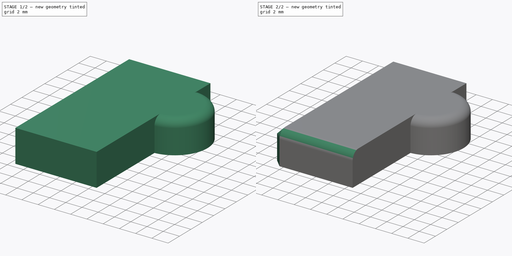
[diagram: build sequence overview — one tinted view per stage of 2, left to right]
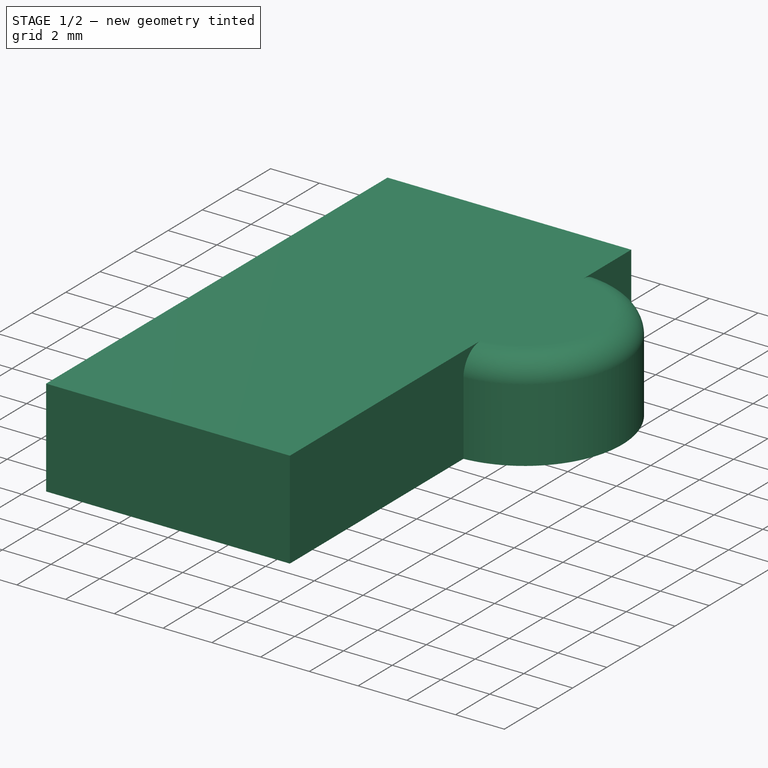
[diagram: stage 1 of 2 — iso view after this stage's code; geometry added in this stage tinted green]
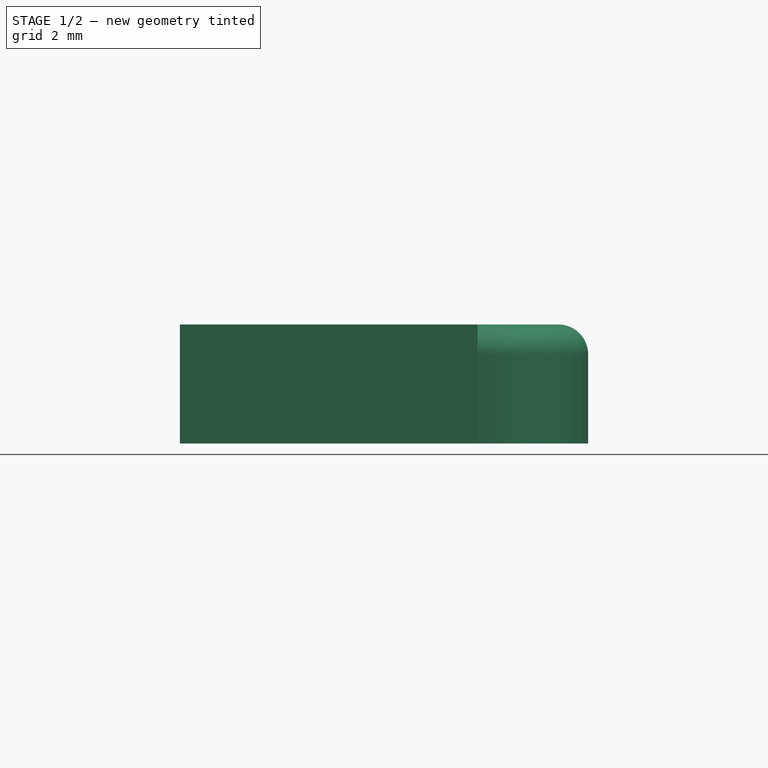
[diagram: stage 1 of 2 — front view after this stage's code; geometry added in this stage tinted green]
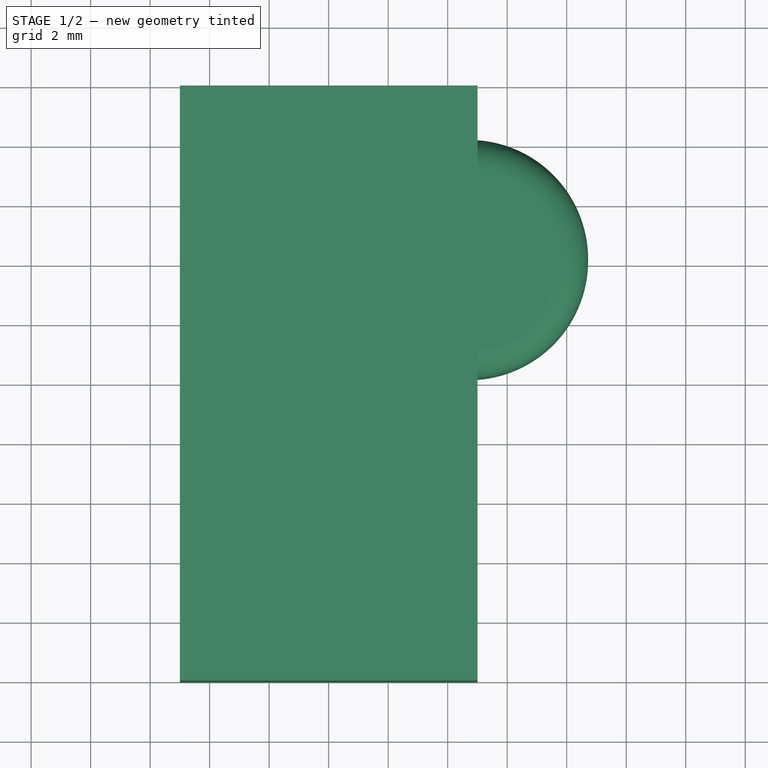
[diagram: stage 1 of 2 — top view after this stage's code; geometry added in this stage tinted green]
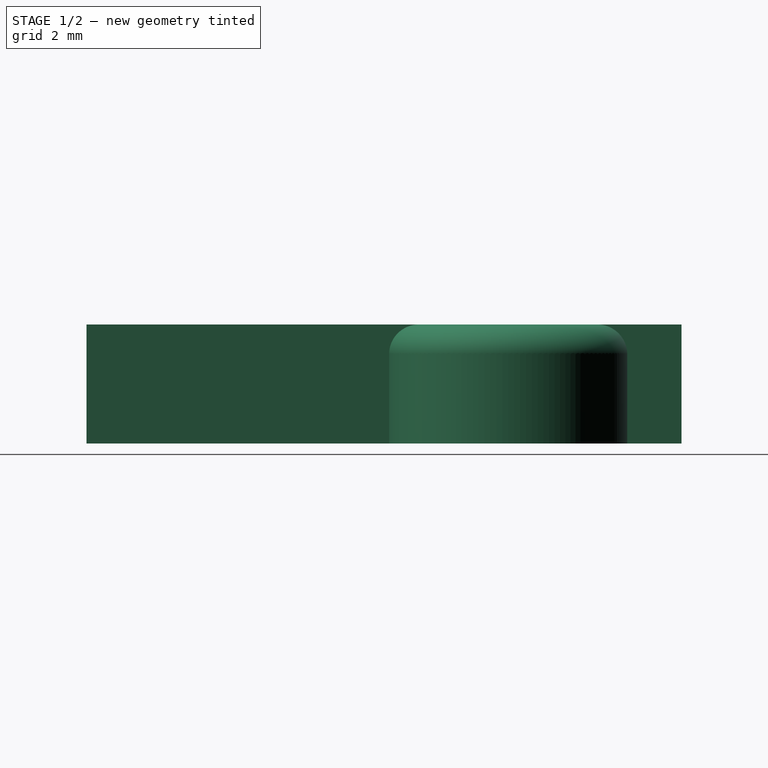
[diagram: stage 1 of 2 — right view after this stage's code; geometry added in this stage tinted green]
FCSTD DOCUMENT  (FreeCAD 0.20R25220 (Git))
Label: test_part
License: All rights reserved
LicenseURL: http://en.wikipedia.org/wiki/All_rights_reserved
objects: PartDesign::Fillet×2, Sketcher::SketchObject×1, PartDesign::Pad×1, PartDesign::Chamfer×1, PartDesign::Body×1
note: 10 computed .brp shape members not serialized (recipe doc carries the construction recipe); baked Part::Feature solids carry a one-line shape summary decoded from their .brp

FEATURE [Sketcher::SketchObject] Sketch
  FullyConstrained = false
  MapMode = 5
  Support = -> [XY_Plane]
  sketch-geometry (6):
    g0: LineSegment StartX=-5 StartY=10 StartZ=0 EndX=5 EndY=10 EndZ=0
    g1: LineSegment StartX=5 StartY=10 StartZ=0 EndX=5 EndY=8.17465 EndZ=0
    g2: LineSegment StartX=5 StartY=-10 StartZ=0 EndX=-5 EndY=-10 EndZ=0
    g3: LineSegment StartX=-5 StartY=-10 StartZ=0 EndX=-5 EndY=10 EndZ=0
    g4: ArcOfCircle CenterX=4.70663 CenterY=4.17253 CenterZ=0 NormalX=0 NormalY=0 NormalZ=1 AngleXU=0 Radius=4.01286 StartAngle=4.78556 EndAngle=7.78081
    g5: LineSegment StartX=5 StartY=0.170411 StartZ=0 EndX=5 EndY=-10 EndZ=0
  constraints (14):
    c: Coincident(g0,g1)
    c: Coincident(g5,g2)
    c: Coincident(g2,g3)
    c: Coincident(g3,g0)
    c: Horizontal(g0)
    c: Horizontal(g2)
    c: Vertical(g1)
    c: Vertical(g3)
    c: DistanceX(g2,g2) = 10
    c: DistanceY(g5,g1) = 20
    c: Distance(g-1,g1) = 5
    c: Distance(g-1,g0) = 10
    c: Coincident(g1,g4)
    c: Coincident(g5,g4)
FEATURE [PartDesign::Pad] Pad
  Direction = (0,0,1)
  Length = 4
  Length2 = 100
  Profile = -> Sketch
  Type = 0
FEATURE [PartDesign::Fillet] Fillet
  Base = -> Pad [Edge18]
  BaseFeature = -> Pad
  Radius = 1
  SupportTransform = false
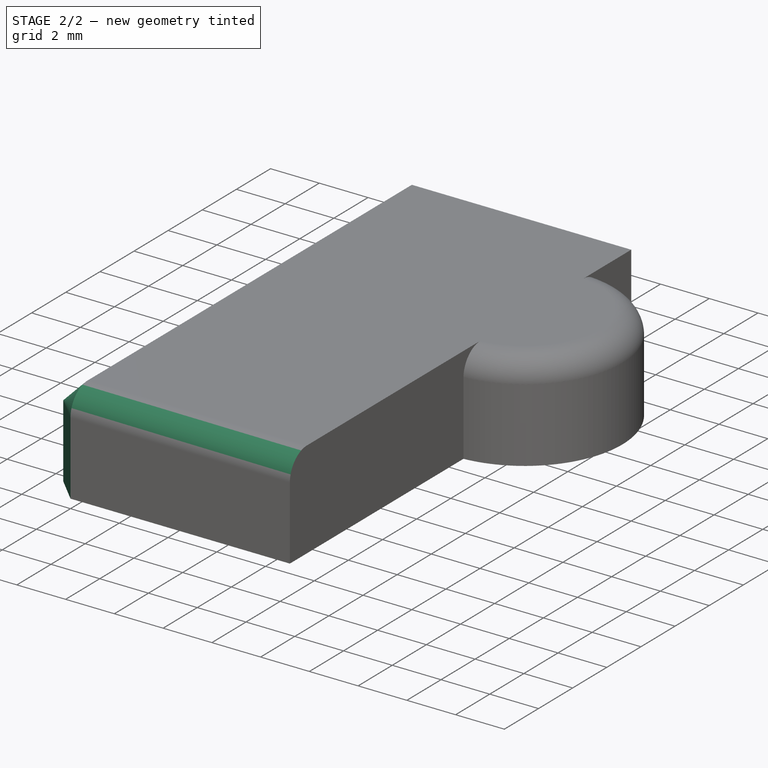
[diagram: stage 2 of 2 — iso view after this stage's code; geometry added in this stage tinted green]
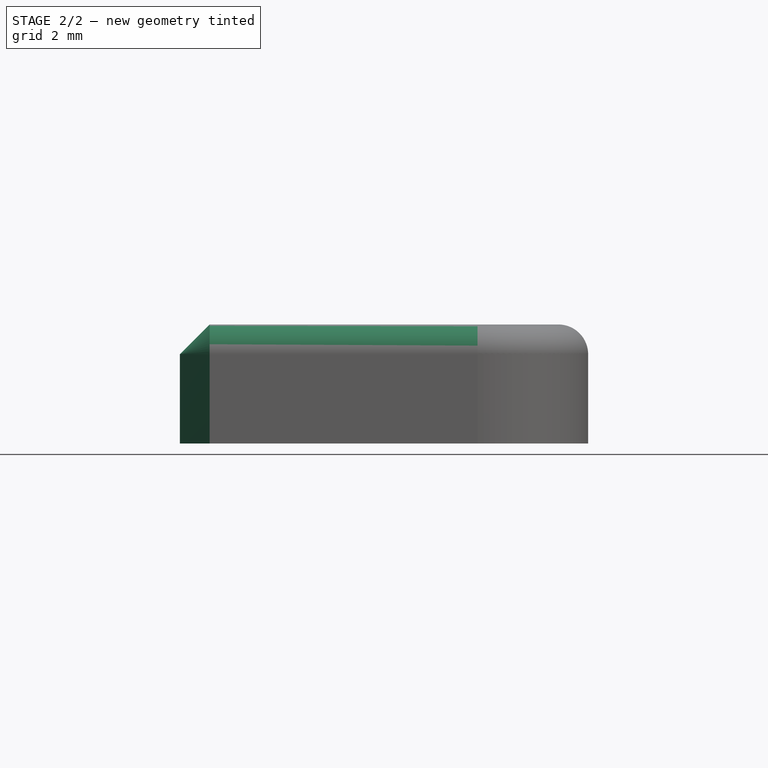
[diagram: stage 2 of 2 — front view after this stage's code; geometry added in this stage tinted green]
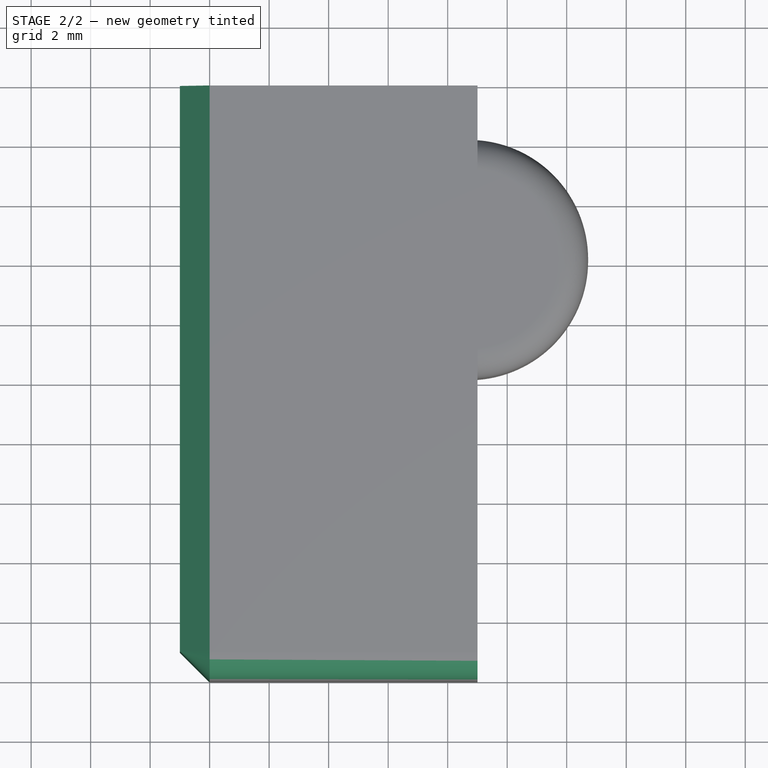
[diagram: stage 2 of 2 — top view after this stage's code; geometry added in this stage tinted green]
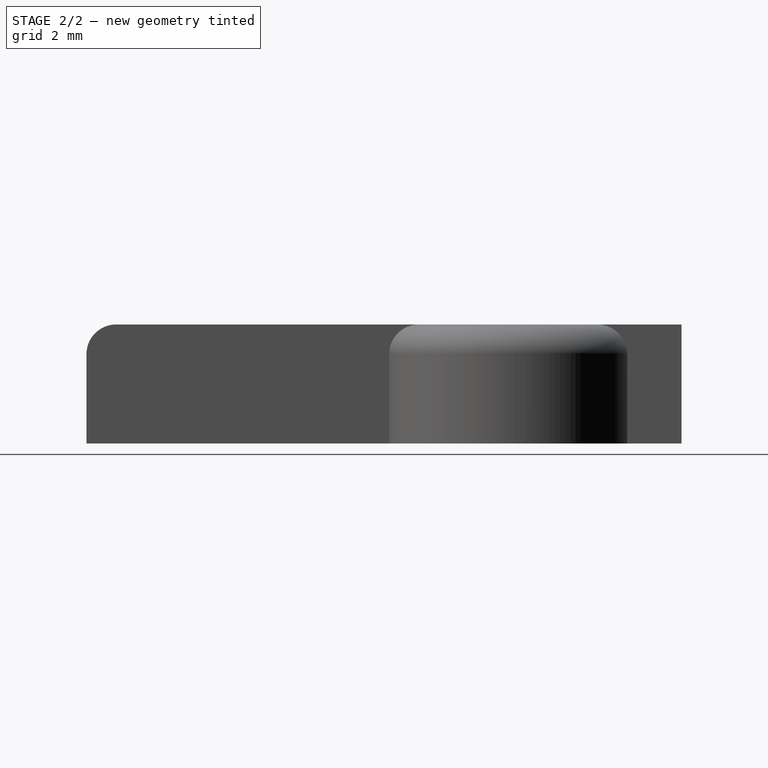
[diagram: stage 2 of 2 — right view after this stage's code; geometry added in this stage tinted green]
FEATURE [PartDesign::Fillet] Fillet001
  Base = -> Fillet [Edge16]
  BaseFeature = -> Fillet
  Radius = 1
  SupportTransform = false
FEATURE [PartDesign::Chamfer] Chamfer
  Angle = 45
  Base = -> Fillet001 [Edge17]
  BaseFeature = -> Fillet001
  ChamferType = 0
  FlipDirection = false
  Size = 1
  Size2 = 1
  SupportTransform = false
FEATURE [PartDesign::Body] Body
  Group = -> [Sketch,Pad,Fillet,Fillet001,Chamfer]
  Origin = -> Origin
  Tip = -> Chamfer
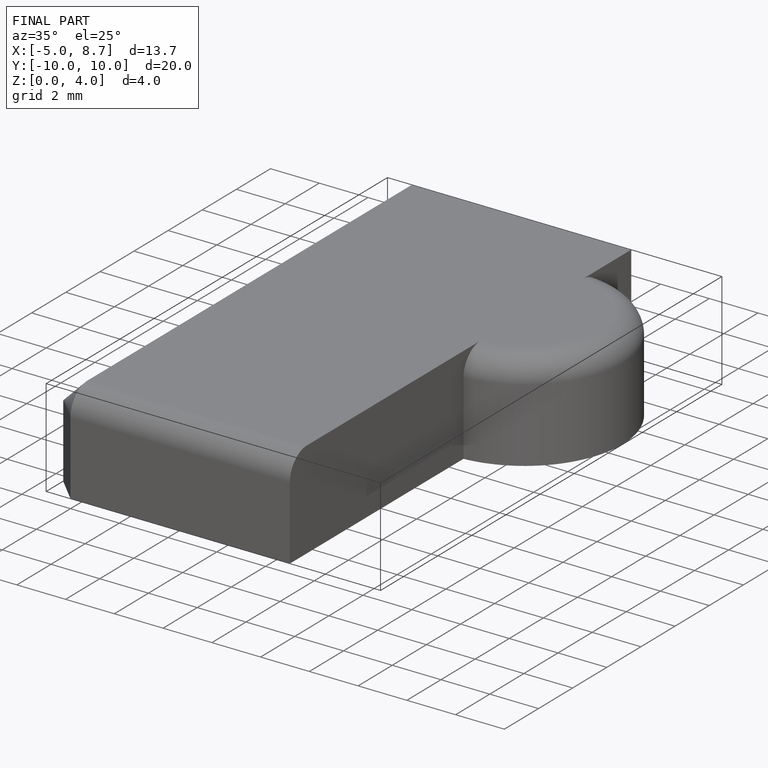
[diagram: finished part — iso view with bounding-box wireframe]
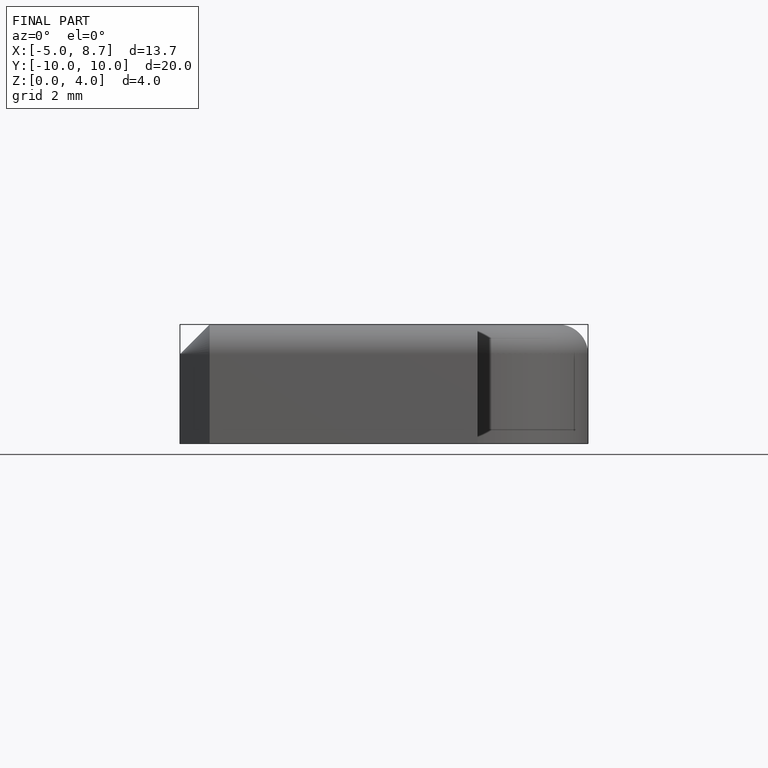
[diagram: finished part — front view with bounding-box wireframe]
